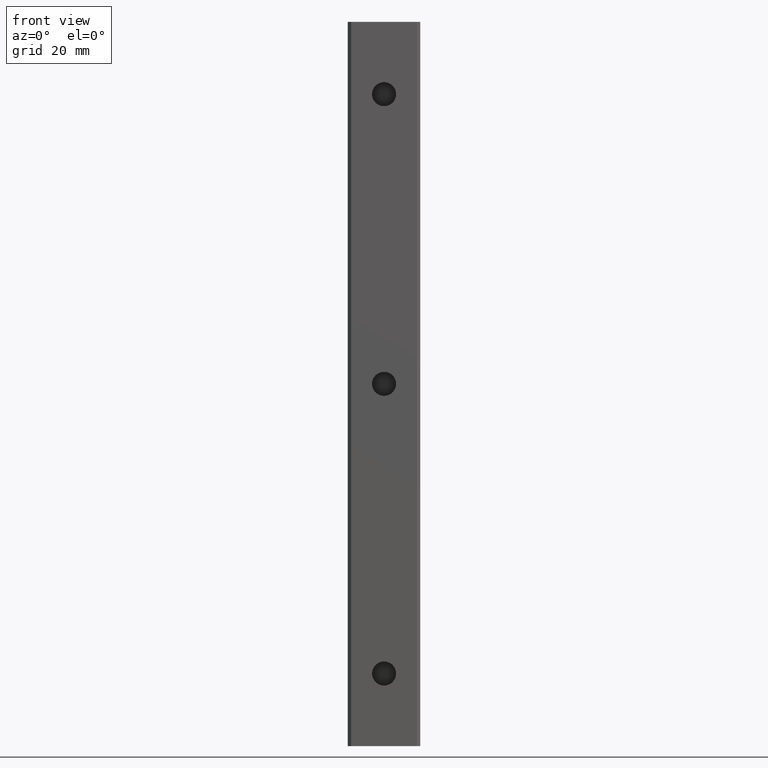
[diagram: clean part render]
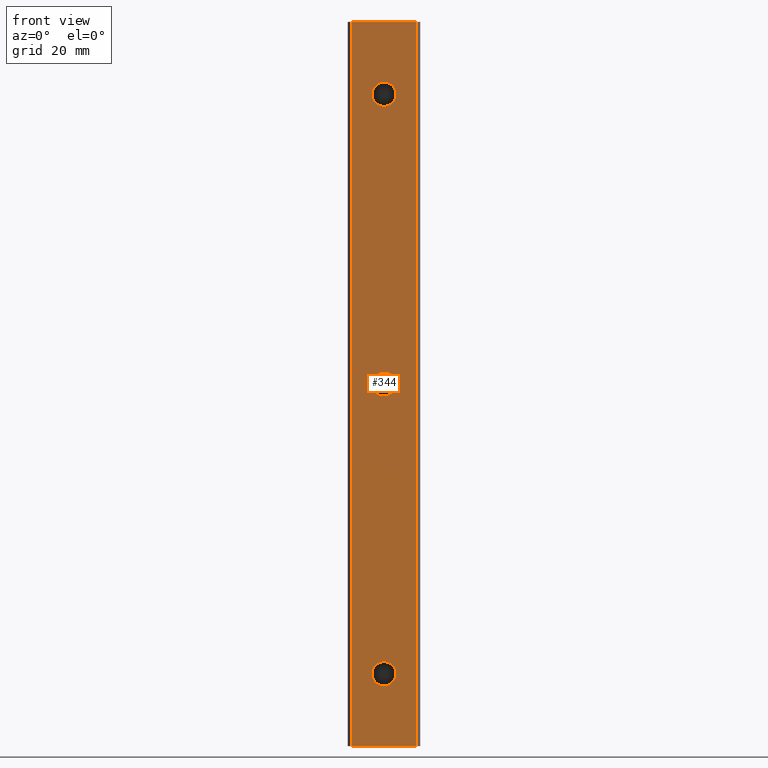
[diagram: same view with one face highlighted and labeled with its STEP entity id]
A machine part, front view. The second image highlights one B-rep face of the part: STEP entity #344.
In plain terms, the highlighted planar face has unit normal (0, -1, 0).
Its self-contained STEP definition (entity closure, byte-faithful):
#217 = VERTEX_POINT ( 'NONE', #753 ) ;
#220 = EDGE_CURVE ( 'NONE', #223, #217, #734, .T. ) ;
#221 = EDGE_CURVE ( 'NONE', #222, #223, #760, .T. ) ;
#222 = VERTEX_POINT ( 'NONE', #756 ) ;
#223 = VERTEX_POINT ( 'NONE', #755 ) ;
#250 = EDGE_CURVE ( 'NONE', #217, #281, #784, .T. ) ;
#280 = EDGE_CURVE ( 'NONE', #281, #222, #810, .T. ) ;
#281 = VERTEX_POINT ( 'NONE', #801 ) ;
#303 = EDGE_LOOP ( 'NONE', ( #345, #325 ) ) ;
#313 = ORIENTED_EDGE ( 'NONE', *, *, #1122, .T. ) ;
#316 = EDGE_CURVE ( 'NONE', #1113, #1101, #809, .T. ) ;
#321 = EDGE_CURVE ( 'NONE', #1118, #1077, #793, .T. ) ;
#323 = EDGE_LOOP ( 'NONE', ( #346, #347 ) ) ;
#325 = ORIENTED_EDGE ( 'NONE', *, *, #321, .T. ) ;
#332 = ORIENTED_EDGE ( 'NONE', *, *, #280, .T. ) ;
#340 = EDGE_LOOP ( 'NONE', ( #313, #357 ) ) ;
#341 = ORIENTED_EDGE ( 'NONE', *, *, #250, .T. ) ;
#342 = EDGE_CURVE ( 'NONE', #1095, #1100, #798, .T. ) ;
#343 = ORIENTED_EDGE ( 'NONE', *, *, #220, .T. ) ;
#344 = ADVANCED_FACE ( 'NONE', ( #855, #831, #857, #856 ), #837, .T. ) ;
#345 = ORIENTED_EDGE ( 'NONE', *, *, #1076, .T. ) ;
#346 = ORIENTED_EDGE ( 'NONE', *, *, #1099, .T. ) ;
#347 = ORIENTED_EDGE ( 'NONE', *, *, #342, .T. ) ;
#357 = ORIENTED_EDGE ( 'NONE', *, *, #316, .T. ) ;
#358 = EDGE_LOOP ( 'NONE', ( #341, #332, #1133, #343 ) ) ;
#652 = CARTESIAN_POINT ( 'NONE',  ( -6.754596881819000000E-013, -15.00000000000000000, -60.00000000000000000 ) ) ;
#653 = AXIS2_PLACEMENT_3D ( 'NONE', #652, #719, #740 ) ;
#719 = DIRECTION ( 'NONE',  ( 0.0000000000000000000, 1.000000000000000000, 0.0000000000000000000 ) ) ;
#734 = LINE ( 'NONE', #754, #761 ) ;
#735 = DIRECTION ( 'NONE',  ( -1.000000000000000000, 0.0000000000000000000, 0.0000000000000000000 ) ) ;
#740 = DIRECTION ( 'NONE',  ( 0.0000000000000000000, 0.0000000000000000000, -1.000000000000000000 ) ) ;
#753 = CARTESIAN_POINT ( 'NONE',  ( -6.799999999998999700, -15.00000000000000000, 75.00000000000005700 ) ) ;
#754 = CARTESIAN_POINT ( 'NONE',  ( -6.799999999998999700, -15.00000000000000000, 75.00000000000000000 ) ) ;
#755 = CARTESIAN_POINT ( 'NONE',  ( 6.800000000001000800, -15.00000000000000000, 75.00000000000001400 ) ) ;
#756 = CARTESIAN_POINT ( 'NONE',  ( 6.800000000001000800, -15.00000000000000000, -75.00000000000000000 ) ) ;
#757 = DIRECTION ( 'NONE',  ( 0.0000000000000000000, 0.0000000000000000000, 1.000000000000000000 ) ) ;
#758 = VECTOR ( 'NONE', #757, 1000.000000000000000 ) ;
#759 = CARTESIAN_POINT ( 'NONE',  ( 6.800000000000999900, -15.00000000000000000, -75.00000000000000000 ) ) ;
#760 = LINE ( 'NONE', #759, #758 ) ;
#761 = VECTOR ( 'NONE', #735, 1000.000000000000000 ) ;
#781 = DIRECTION ( 'NONE',  ( 0.0000000000000000000, 0.0000000000000000000, -1.000000000000000000 ) ) ;
#782 = VECTOR ( 'NONE', #781, 1000.000000000000000 ) ;
#783 = CARTESIAN_POINT ( 'NONE',  ( -6.799999999998999700, -15.00000000000000000, -75.00000000000000000 ) ) ;
#784 = LINE ( 'NONE', #783, #782 ) ;
#789 = DIRECTION ( 'NONE',  ( 0.0000000000000000000, 0.0000000000000000000, -1.000000000000000000 ) ) ;
#790 = DIRECTION ( 'NONE',  ( 0.0000000000000000000, 1.000000000000000000, 0.0000000000000000000 ) ) ;
#791 = CARTESIAN_POINT ( 'NONE',  ( -6.754596881819000000E-013, -15.00000000000000000, -60.00000000000000000 ) ) ;
#792 = AXIS2_PLACEMENT_3D ( 'NONE', #791, #790, #789 ) ;
#793 = CIRCLE ( 'NONE', #792, 2.500000000000002200 ) ;
#794 = DIRECTION ( 'NONE',  ( 0.0000000000000000000, 0.0000000000000000000, -1.000000000000000000 ) ) ;
#795 = DIRECTION ( 'NONE',  ( 0.0000000000000000000, 1.000000000000000000, 0.0000000000000000000 ) ) ;
#796 = CARTESIAN_POINT ( 'NONE',  ( -6.754596881819000000E-013, -15.00000000000000000, 0.0000000000000000000 ) ) ;
#797 = AXIS2_PLACEMENT_3D ( 'NONE', #796, #795, #794 ) ;
#798 = CIRCLE ( 'NONE', #797, 2.500000000000000000 ) ;
#801 = CARTESIAN_POINT ( 'NONE',  ( -6.799999999998999700, -15.00000000000000000, -75.00000000000000000 ) ) ;
#802 = DIRECTION ( 'NONE',  ( 1.000000000000000000, 0.0000000000000000000, 0.0000000000000000000 ) ) ;
#805 = CARTESIAN_POINT ( 'NONE',  ( -6.799999999998999700, -15.00000000000000000, -75.00000000000000000 ) ) ;
#809 = CIRCLE ( 'NONE', #820, 2.500000000000002200 ) ;
#810 = LINE ( 'NONE', #805, #816 ) ;
#816 = VECTOR ( 'NONE', #802, 1000.000000000000000 ) ;
#817 = DIRECTION ( 'NONE',  ( 0.0000000000000000000, 0.0000000000000000000, -1.000000000000000000 ) ) ;
#818 = DIRECTION ( 'NONE',  ( 0.0000000000000000000, 1.000000000000000000, 0.0000000000000000000 ) ) ;
#819 = CARTESIAN_POINT ( 'NONE',  ( -6.754596881819000000E-013, -15.00000000000000000, 60.00000000000000000 ) ) ;
#820 = AXIS2_PLACEMENT_3D ( 'NONE', #819, #818, #817 ) ;
#823 = DIRECTION ( 'NONE',  ( 0.0000000000000000000, 0.0000000000000000000, -1.000000000000000000 ) ) ;
#831 = FACE_BOUND ( 'NONE', #323, .T. ) ;
#834 = DIRECTION ( 'NONE',  ( 0.0000000000000000000, -1.000000000000000000, 0.0000000000000000000 ) ) ;
#835 = CARTESIAN_POINT ( 'NONE',  ( -6.799999999998999700, -15.00000000000000000, -75.00000000000000000 ) ) ;
#836 = AXIS2_PLACEMENT_3D ( 'NONE', #835, #834, #823 ) ;
#837 = PLANE ( 'NONE',  #836 ) ;
#855 = FACE_BOUND ( 'NONE', #303, .T. ) ;
#856 = FACE_OUTER_BOUND ( 'NONE', #358, .T. ) ;
#857 = FACE_BOUND ( 'NONE', #340, .T. ) ;
#965 = CIRCLE ( 'NONE', #653, 2.500000000000002200 ) ;
#983 = CARTESIAN_POINT ( 'NONE',  ( -6.754596881819000000E-013, -15.00000000000000000, -62.50000000000000000 ) ) ;
#999 = CARTESIAN_POINT ( 'NONE',  ( -6.751535264821132000E-013, -15.00000000000000000, 2.500000000000000000 ) ) ;
#1011 = CARTESIAN_POINT ( 'NONE',  ( -6.754596881819000000E-013, -15.00000000000000000, 57.49999999999999300 ) ) ;
#1015 = DIRECTION ( 'NONE',  ( 0.0000000000000000000, 0.0000000000000000000, -1.000000000000000000 ) ) ;
#1016 = DIRECTION ( 'NONE',  ( 0.0000000000000000000, 1.000000000000000000, 0.0000000000000000000 ) ) ;
#1017 = AXIS2_PLACEMENT_3D ( 'NONE', #1018, #1016, #1015 ) ;
#1018 = CARTESIAN_POINT ( 'NONE',  ( -6.754596881819000000E-013, -15.00000000000000000, 0.0000000000000000000 ) ) ;
#1019 = CIRCLE ( 'NONE', #1017, 2.500000000000000000 ) ;
#1020 = CARTESIAN_POINT ( 'NONE',  ( -6.754596881819000000E-013, -15.00000000000000000, -2.500000000000000000 ) ) ;
#1036 = CARTESIAN_POINT ( 'NONE',  ( -6.751535264821132000E-013, -15.00000000000000000, 62.50000000000000000 ) ) ;
#1076 = EDGE_CURVE ( 'NONE', #1077, #1118, #965, .T. ) ;
#1077 = VERTEX_POINT ( 'NONE', #983 ) ;
#1095 = VERTEX_POINT ( 'NONE', #999 ) ;
#1099 = EDGE_CURVE ( 'NONE', #1100, #1095, #1019, .T. ) ;
#1100 = VERTEX_POINT ( 'NONE', #1020 ) ;
#1101 = VERTEX_POINT ( 'NONE', #1011 ) ;
#1113 = VERTEX_POINT ( 'NONE', #1036 ) ;
#1118 = VERTEX_POINT ( 'NONE', #1491 ) ;
#1122 = EDGE_CURVE ( 'NONE', #1101, #1113, #1474, .T. ) ;
#1133 = ORIENTED_EDGE ( 'NONE', *, *, #221, .T. ) ;
#1460 = DIRECTION ( 'NONE',  ( 0.0000000000000000000, 0.0000000000000000000, -1.000000000000000000 ) ) ;
#1461 = DIRECTION ( 'NONE',  ( 0.0000000000000000000, 1.000000000000000000, 0.0000000000000000000 ) ) ;
#1462 = CARTESIAN_POINT ( 'NONE',  ( -6.754596881819000000E-013, -15.00000000000000000, 60.00000000000000000 ) ) ;
#1463 = AXIS2_PLACEMENT_3D ( 'NONE', #1462, #1461, #1460 ) ;
#1474 = CIRCLE ( 'NONE', #1463, 2.500000000000002200 ) ;
#1491 = CARTESIAN_POINT ( 'NONE',  ( -6.751535264821132000E-013, -15.00000000000000000, -57.49999999999999300 ) ) ;